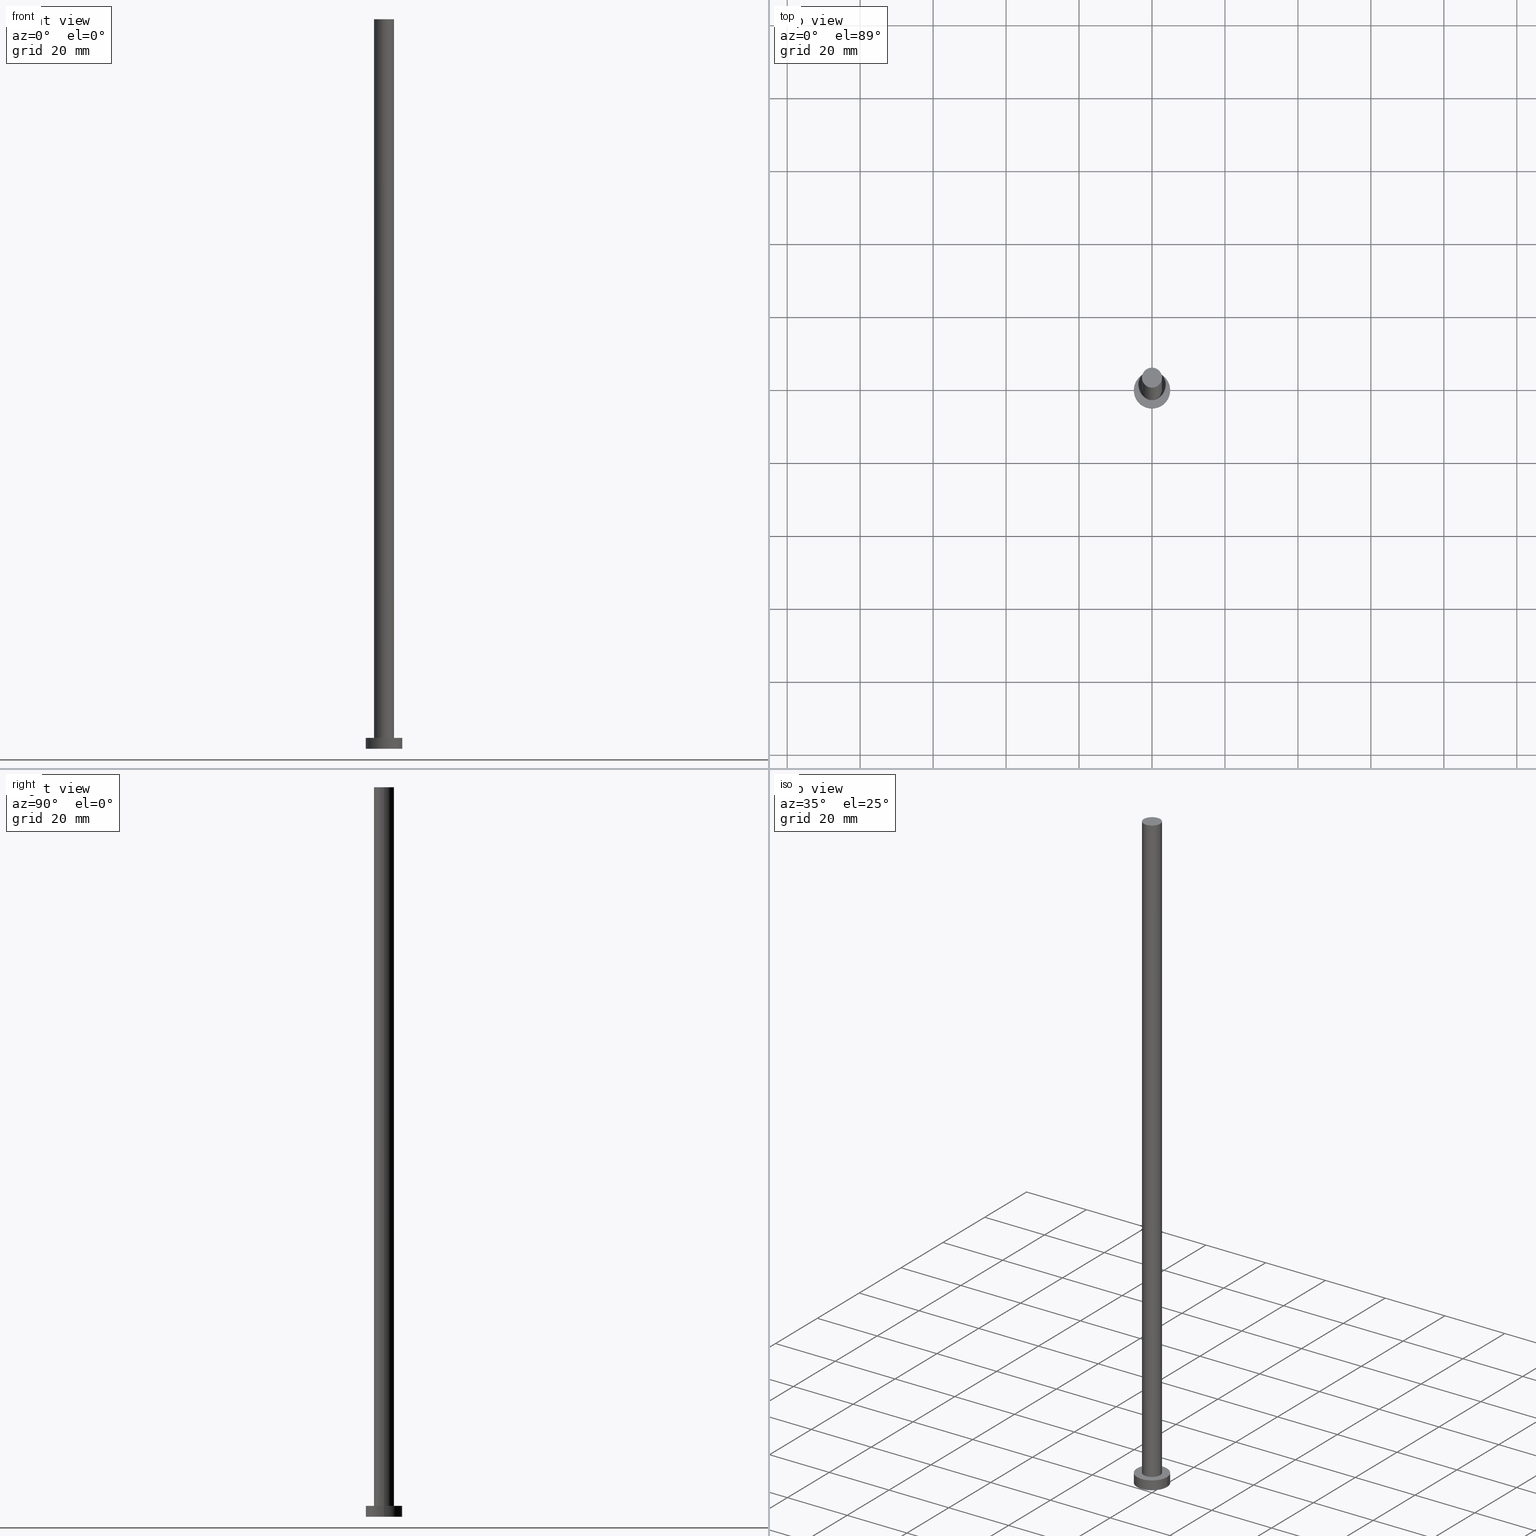
[diagram: canonical four-view strip — front | top / right | iso, engineering-drawing reading convention]
A machine part, canonical four-view strip (front | top / right | iso — engineering-drawing reading convention). The complete STEP part file that produces these views, byte-faithful:
ISO-10303-21;
HEADER;
FILE_DESCRIPTION (( 'STEP AP203' ),
    '1' );
FILE_NAME ('0ec5.STEP',
    '2023-02-13T12:39:51',
    ( '' ),
    ( '' ),
    'SwSTEP 2.0',
    'SolidWorks 2019',
    '' );
FILE_SCHEMA (( 'CONFIG_CONTROL_DESIGN' ));
ENDSEC;

DATA;
#1 = SECURITY_CLASSIFICATION_LEVEL ( 'unclassified' ) ;
#2 = ORIENTED_EDGE ( 'NONE', *, *, #18, .T. ) ;
#3 = PERSON_AND_ORGANIZATION ( #118, #54 ) ;
#4 = LOCAL_TIME ( 13, 39, 51.00000000000000000, #216 ) ;
#5 = ORIENTED_EDGE ( 'NONE', *, *, #229, .T. ) ;
#6 = AXIS2_PLACEMENT_3D ( 'NONE', #184, #46, #92 ) ;
#7 = APPLICATION_PROTOCOL_DEFINITION ( 'international standard', 'config_control_design', 1994, #185 ) ;
#8 = ORIENTED_EDGE ( 'NONE', *, *, #138, .T. ) ;
#9 = CARTESIAN_POINT ( 'NONE',  ( 0.000000000000000000, 0.000000000000000000, 3.000000000000000000 ) ) ;
#10 = AXIS2_PLACEMENT_3D ( 'NONE', #114, #251, #14 ) ;
#11 = CC_DESIGN_DATE_AND_TIME_ASSIGNMENT ( #143, #125, ( #183 ) ) ;
#12 = DIRECTION ( 'NONE',  ( -0.000000000000000000, -0.000000000000000000, -1.000000000000000000 ) ) ;
#13 = CARTESIAN_POINT ( 'NONE',  ( 0.000000000000000000, 0.000000000000000000, 200.0000000000000000 ) ) ;
#14 = DIRECTION ( 'NONE',  ( 1.000000000000000000, 0.000000000000000000, 0.000000000000000000 ) ) ;
#15 = APPROVAL ( #197, 'NEUR�EN�' ) ;
#16 = FACE_OUTER_BOUND ( 'NONE', #177, .T. ) ;
#17 = CIRCLE ( 'NONE', #121, 5.000000000000000000 ) ;
#18 = EDGE_CURVE ( 'NONE', #27, #128, #221, .T. ) ;
#19 = VERTEX_POINT ( 'NONE', #68 ) ;
#20 = ORIENTED_EDGE ( 'NONE', *, *, #93, .F. ) ;
#21 = COORDINATED_UNIVERSAL_TIME_OFFSET ( 1, 0, .AHEAD. ) ;
#22 = AXIS2_PLACEMENT_3D ( 'NONE', #209, #154, #224 ) ;
#23 = APPLICATION_PROTOCOL_DEFINITION ( 'international standard', 'config_control_design', 1994, #162 ) ;
#24 = APPROVAL_ROLE ( '' ) ;
#25 = CALENDAR_DATE ( 2023, 13, 2 ) ;
#26 = ORIENTED_EDGE ( 'NONE', *, *, #32, .T. ) ;
#27 = VERTEX_POINT ( 'NONE', #181 ) ;
#28 = CIRCLE ( 'NONE', #60, 5.000000000000000000 ) ;
#29 = CARTESIAN_POINT ( 'NONE',  ( 2.750000000000000000, 3.367778697655221012E-16, 3.000000000000000000 ) ) ;
#30 = DIRECTION ( 'NONE',  ( 1.000000000000000000, 0.000000000000000000, 0.000000000000000000 ) ) ;
#31 = CC_DESIGN_SECURITY_CLASSIFICATION ( #183, ( #227 ) ) ;
#32 = EDGE_CURVE ( 'NONE', #223, #107, #179, .T. ) ;
#33 =( GEOMETRIC_REPRESENTATION_CONTEXT ( 3 ) GLOBAL_UNCERTAINTY_ASSIGNED_CONTEXT ( ( #94 ) ) GLOBAL_UNIT_ASSIGNED_CONTEXT ( ( #204, #187, #52 ) ) REPRESENTATION_CONTEXT ( 'NONE', 'WORKASPACE' ) );
#34 = FACE_OUTER_BOUND ( 'NONE', #147, .T. ) ;
#35 = DIRECTION ( 'NONE',  ( -1.000000000000000000, 0.000000000000000000, 0.000000000000000000 ) ) ;
#36 = CARTESIAN_POINT ( 'NONE',  ( 0.000000000000000000, 0.000000000000000000, 3.000000000000000000 ) ) ;
#37 = AXIS2_PLACEMENT_3D ( 'NONE', #228, #76, #101 ) ;
#38 = ADVANCED_BREP_SHAPE_REPRESENTATION ( '0ec5', ( #250, #81 ), #33 ) ;
#39 = ORIENTED_EDGE ( 'NONE', *, *, #82, .F. ) ;
#40 = ORIENTED_EDGE ( 'NONE', *, *, #174, .T. ) ;
#41 = CC_DESIGN_DATE_AND_TIME_ASSIGNMENT ( #194, #237, ( #72 ) ) ;
#42 = PERSON_AND_ORGANIZATION ( #118, #54 ) ;
#43 = APPROVAL_ROLE ( '' ) ;
#44 = DIRECTION ( 'NONE',  ( -0.000000000000000000, -0.000000000000000000, -1.000000000000000000 ) ) ;
#45 = PERSON_AND_ORGANIZATION ( #118, #54 ) ;
#46 = DIRECTION ( 'NONE',  ( 0.000000000000000000, 0.000000000000000000, 1.000000000000000000 ) ) ;
#47 = APPROVAL_PERSON_ORGANIZATION ( #45, #15, #43 ) ;
#48 = MECHANICAL_CONTEXT ( 'NONE', #162, 'mechanical' ) ;
#49 = DIRECTION ( 'NONE',  ( 1.000000000000000000, 0.000000000000000000, 0.000000000000000000 ) ) ;
#50 = CARTESIAN_POINT ( 'NONE',  ( -2.750000000000000000, 0.000000000000000000, 200.0000000000000000 ) ) ;
#51 = CC_DESIGN_APPROVAL ( #225, ( #72 ) ) ;
#52 =( NAMED_UNIT ( * ) SI_UNIT ( $, .STERADIAN. ) SOLID_ANGLE_UNIT ( ) );
#53 = DIRECTION ( 'NONE',  ( -1.000000000000000000, 0.000000000000000000, 0.000000000000000000 ) ) ;
#54 = ORGANIZATION ( 'NEUR�EN�', 'NEUR�EN�', '' ) ;
#55 = DIRECTION ( 'NONE',  ( -1.000000000000000000, 0.000000000000000000, 0.000000000000000000 ) ) ;
#56 = DIRECTION ( 'NONE',  ( 0.000000000000000000, 0.000000000000000000, 1.000000000000000000 ) ) ;
#57 = ADVANCED_FACE ( 'NONE', ( #124 ), #126, .T. ) ;
#58 = EDGE_LOOP ( 'NONE', ( #2, #40 ) ) ;
#59 = DIRECTION ( 'NONE',  ( -0.000000000000000000, -0.000000000000000000, -1.000000000000000000 ) ) ;
#60 = AXIS2_PLACEMENT_3D ( 'NONE', #180, #105, #236 ) ;
#61 = VECTOR ( 'NONE', #195, 1000.000000000000000 ) ;
#62 = CALENDAR_DATE ( 2023, 13, 2 ) ;
#63 = EDGE_LOOP ( 'NONE', ( #199, #70 ) ) ;
#64 = COORDINATED_UNIVERSAL_TIME_OFFSET ( 1, 0, .AHEAD. ) ;
#65 = DIRECTION ( 'NONE',  ( -1.000000000000000000, 0.000000000000000000, 0.000000000000000000 ) ) ;
#66 = VECTOR ( 'NONE', #133, 1000.000000000000000 ) ;
#67 = PERSON_AND_ORGANIZATION_ROLE ( 'creator' ) ;
#68 = CARTESIAN_POINT ( 'NONE',  ( -2.750000000000000000, 0.000000000000000000, 3.000000000000000000 ) ) ;
#69 = DATE_AND_TIME ( #25, #249 ) ;
#70 = ORIENTED_EDGE ( 'NONE', *, *, #122, .F. ) ;
#71 = ORIENTED_EDGE ( 'NONE', *, *, #84, .T. ) ;
#72 = PRODUCT_DEFINITION ( 'NEZN�M�', '', #227, #167 ) ;
#73 = ORIENTED_EDGE ( 'NONE', *, *, #132, .F. ) ;
#74 = DIRECTION ( 'NONE',  ( 1.000000000000000000, 0.000000000000000000, -0.000000000000000000 ) ) ;
#75 = CC_DESIGN_APPROVAL ( #142, ( #227 ) ) ;
#76 = DIRECTION ( 'NONE',  ( 0.000000000000000000, 0.000000000000000000, 1.000000000000000000 ) ) ;
#77 = AXIS2_PLACEMENT_3D ( 'NONE', #88, #234, #30 ) ;
#78 = CARTESIAN_POINT ( 'NONE',  ( 0.000000000000000000, 0.000000000000000000, 3.000000000000000000 ) ) ;
#79 = PLANE ( 'NONE',  #22 ) ;
#80 = PRODUCT_DEFINITION_SHAPE ( 'NONE', 'NONE',  #72 ) ;
#81 = AXIS2_PLACEMENT_3D ( 'NONE', #193, #103, #231 ) ;
#82 = EDGE_CURVE ( 'NONE', #128, #136, #90, .T. ) ;
#83 = CYLINDRICAL_SURFACE ( 'NONE', #134, 5.000000000000000000 ) ;
#84 = EDGE_CURVE ( 'NONE', #240, #173, #28, .T. ) ;
#85 = ORIENTED_EDGE ( 'NONE', *, *, #32, .F. ) ;
#86 = PERSON_AND_ORGANIZATION ( #118, #54 ) ;
#87 = CALENDAR_DATE ( 2023, 13, 2 ) ;
#88 = CARTESIAN_POINT ( 'NONE',  ( 0.000000000000000000, 0.000000000000000000, 0.000000000000000000 ) ) ;
#89 = DATE_AND_TIME ( #87, #150 ) ;
#90 = LINE ( 'NONE', #238, #245 ) ;
#91 = SHAPE_DEFINITION_REPRESENTATION ( #80, #38 ) ;
#92 = DIRECTION ( 'NONE',  ( 1.000000000000000000, 0.000000000000000000, 0.000000000000000000 ) ) ;
#93 = EDGE_CURVE ( 'NONE', #107, #223, #98, .T. ) ;
#94 = UNCERTAINTY_MEASURE_WITH_UNIT (LENGTH_MEASURE( 1.000000000000000082E-05 ), #204, 'distance_accuracy_value', 'NONE');
#95 = ORIENTED_EDGE ( 'NONE', *, *, #82, .T. ) ;
#96 = DIRECTION ( 'NONE',  ( 0.000000000000000000, 0.000000000000000000, 1.000000000000000000 ) ) ;
#97 = CC_DESIGN_PERSON_AND_ORGANIZATION_ASSIGNMENT ( #159, #161, ( #246 ) ) ;
#98 = CIRCLE ( 'NONE', #158, 5.000000000000000000 ) ;
#99 = VECTOR ( 'NONE', #59, 1000.000000000000000 ) ;
#100 = CARTESIAN_POINT ( 'NONE',  ( 0.000000000000000000, 0.000000000000000000, 0.000000000000000000 ) ) ;
#101 = DIRECTION ( 'NONE',  ( 1.000000000000000000, 0.000000000000000000, 0.000000000000000000 ) ) ;
#102 = ORIENTED_EDGE ( 'NONE', *, *, #93, .T. ) ;
#103 = DIRECTION ( 'NONE',  ( 0.000000000000000000, 0.000000000000000000, 1.000000000000000000 ) ) ;
#104 = APPROVAL_DATE_TIME ( #89, #225 ) ;
#105 = DIRECTION ( 'NONE',  ( 0.000000000000000000, 0.000000000000000000, 1.000000000000000000 ) ) ;
#106 = CALENDAR_DATE ( 2023, 13, 2 ) ;
#107 = VERTEX_POINT ( 'NONE', #215 ) ;
#108 = CC_DESIGN_PERSON_AND_ORGANIZATION_ASSIGNMENT ( #86, #67, ( #227 ) ) ;
#109 = DIRECTION ( 'NONE',  ( -0.000000000000000000, -0.000000000000000000, -1.000000000000000000 ) ) ;
#110 = LOCAL_TIME ( 13, 39, 51.00000000000000000, #64 ) ;
#111 = EDGE_LOOP ( 'NONE', ( #39, #135, #8, #5 ) ) ;
#112 = FACE_OUTER_BOUND ( 'NONE', #58, .T. ) ;
#113 = FACE_OUTER_BOUND ( 'NONE', #153, .T. ) ;
#114 = CARTESIAN_POINT ( 'NONE',  ( 0.000000000000000000, 0.000000000000000000, 3.000000000000000000 ) ) ;
#115 = CIRCLE ( 'NONE', #190, 2.750000000000000000 ) ;
#116 = AXIS2_PLACEMENT_3D ( 'NONE', #100, #56, #152 ) ;
#117 = PLANE ( 'NONE',  #226 ) ;
#118 = PERSON ( 'NEUR�EN�', 'NEUR�EN�', 'NEUR�EN�', ('NEUR�EN�'), ('NEUR�EN�'), ('NEUR�EN�') ) ;
#119 = CALENDAR_DATE ( 2023, 13, 2 ) ;
#120 = APPROVAL_ROLE ( '' ) ;
#121 = AXIS2_PLACEMENT_3D ( 'NONE', #151, #169, #222 ) ;
#122 = EDGE_CURVE ( 'NONE', #136, #19, #115, .T. ) ;
#123 = COORDINATED_UNIVERSAL_TIME_OFFSET ( 1, 0, .AHEAD. ) ;
#124 = FACE_OUTER_BOUND ( 'NONE', #155, .T. ) ;
#125 = DATE_TIME_ROLE ( 'classification_date' ) ;
#126 = CYLINDRICAL_SURFACE ( 'NONE', #137, 5.000000000000000000 ) ;
#127 = DIRECTION ( 'NONE',  ( 0.000000000000000000, 0.000000000000000000, 1.000000000000000000 ) ) ;
#128 = VERTEX_POINT ( 'NONE', #242 ) ;
#129 = ORIENTED_EDGE ( 'NONE', *, *, #122, .T. ) ;
#130 = CARTESIAN_POINT ( 'NONE',  ( -5.000000000000000000, 0.000000000000000000, 0.000000000000000000 ) ) ;
#131 = CC_DESIGN_PERSON_AND_ORGANIZATION_ASSIGNMENT ( #42, #144, ( #227 ) ) ;
#132 = EDGE_CURVE ( 'NONE', #173, #107, #200, .T. ) ;
#133 = DIRECTION ( 'NONE',  ( -0.000000000000000000, -0.000000000000000000, -1.000000000000000000 ) ) ;
#134 = AXIS2_PLACEMENT_3D ( 'NONE', #36, #206, #35 ) ;
#135 = ORIENTED_EDGE ( 'NONE', *, *, #18, .F. ) ;
#136 = VERTEX_POINT ( 'NONE', #29 ) ;
#137 = AXIS2_PLACEMENT_3D ( 'NONE', #145, #109, #65 ) ;
#138 = EDGE_CURVE ( 'NONE', #27, #19, #219, .T. ) ;
#139 = CARTESIAN_POINT ( 'NONE',  ( -5.000000000000000000, 0.000000000000000000, 3.000000000000000000 ) ) ;
#140 = APPROVAL_STATUS ( 'not_yet_approved' ) ;
#141 = APPROVAL_STATUS ( 'not_yet_approved' ) ;
#142 = APPROVAL ( #141, 'NEUR�EN�' ) ;
#143 = DATE_AND_TIME ( #106, #110 ) ;
#144 = PERSON_AND_ORGANIZATION_ROLE ( 'design_supplier' ) ;
#145 = CARTESIAN_POINT ( 'NONE',  ( 0.000000000000000000, 0.000000000000000000, 3.000000000000000000 ) ) ;
#146 = CIRCLE ( 'NONE', #37, 2.750000000000000000 ) ;
#147 = EDGE_LOOP ( 'NONE', ( #85, #20 ) ) ;
#148 = DIRECTION ( 'NONE',  ( 0.000000000000000000, 0.000000000000000000, 1.000000000000000000 ) ) ;
#149 = CYLINDRICAL_SURFACE ( 'NONE', #241, 2.750000000000000000 ) ;
#150 = LOCAL_TIME ( 13, 39, 51.00000000000000000, #235 ) ;
#151 = CARTESIAN_POINT ( 'NONE',  ( 0.000000000000000000, 0.000000000000000000, 3.000000000000000000 ) ) ;
#152 = DIRECTION ( 'NONE',  ( 1.000000000000000000, 0.000000000000000000, -0.000000000000000000 ) ) ;
#153 = EDGE_LOOP ( 'NONE', ( #71, #213 ) ) ;
#154 = DIRECTION ( 'NONE',  ( 0.000000000000000000, 0.000000000000000000, 1.000000000000000000 ) ) ;
#155 = EDGE_LOOP ( 'NONE', ( #73, #230, #210, #26 ) ) ;
#156 = CC_DESIGN_PERSON_AND_ORGANIZATION_ASSIGNMENT ( #176, #164, ( #72 ) ) ;
#157 = FACE_OUTER_BOUND ( 'NONE', #111, .T. ) ;
#158 = AXIS2_PLACEMENT_3D ( 'NONE', #182, #148, #49 ) ;
#159 = PERSON_AND_ORGANIZATION ( #118, #54 ) ;
#160 = EDGE_LOOP ( 'NONE', ( #201, #163, #102, #202 ) ) ;
#161 = PERSON_AND_ORGANIZATION_ROLE ( 'design_owner' ) ;
#162 = APPLICATION_CONTEXT ( 'configuration controlled 3d designs of mechanical parts and assemblies' ) ;
#163 = ORIENTED_EDGE ( 'NONE', *, *, #132, .T. ) ;
#164 = PERSON_AND_ORGANIZATION_ROLE ( 'creator' ) ;
#165 = DIRECTION ( 'NONE',  ( 1.000000000000000000, 0.000000000000000000, 0.000000000000000000 ) ) ;
#166 = ADVANCED_FACE ( 'NONE', ( #157 ), #189, .T. ) ;
#167 = DESIGN_CONTEXT ( 'detailed design', #185, 'design' ) ;
#168 = DIRECTION ( 'NONE',  ( -0.000000000000000000, -0.000000000000000000, -1.000000000000000000 ) ) ;
#169 = DIRECTION ( 'NONE',  ( 0.000000000000000000, 0.000000000000000000, 1.000000000000000000 ) ) ;
#170 = ADVANCED_FACE ( 'NONE', ( #34 ), #203, .F. ) ;
#171 = CARTESIAN_POINT ( 'NONE',  ( 0.000000000000000000, 0.000000000000000000, 200.0000000000000000 ) ) ;
#172 = APPROVAL_DATE_TIME ( #69, #15 ) ;
#173 = VERTEX_POINT ( 'NONE', #186 ) ;
#174 = EDGE_CURVE ( 'NONE', #128, #27, #146, .T. ) ;
#175 = CIRCLE ( 'NONE', #10, 2.750000000000000000 ) ;
#176 = PERSON_AND_ORGANIZATION ( #118, #54 ) ;
#177 = EDGE_LOOP ( 'NONE', ( #253, #95, #129, #217 ) ) ;
#178 = CARTESIAN_POINT ( 'NONE',  ( 5.000000000000000000, 6.123233995736766282E-16, 3.000000000000000000 ) ) ;
#179 = CIRCLE ( 'NONE', #77, 5.000000000000000000 ) ;
#180 = CARTESIAN_POINT ( 'NONE',  ( 0.000000000000000000, 0.000000000000000000, 3.000000000000000000 ) ) ;
#181 = CARTESIAN_POINT ( 'NONE',  ( -2.750000000000000000, 0.000000000000000000, 200.0000000000000000 ) ) ;
#182 = CARTESIAN_POINT ( 'NONE',  ( 0.000000000000000000, 0.000000000000000000, 0.000000000000000000 ) ) ;
#183 = SECURITY_CLASSIFICATION ( '', '', #1 ) ;
#184 = CARTESIAN_POINT ( 'NONE',  ( 0.000000000000000000, 0.000000000000000000, 200.0000000000000000 ) ) ;
#185 = APPLICATION_CONTEXT ( 'configuration controlled 3d designs of mechanical parts and assemblies' ) ;
#186 = CARTESIAN_POINT ( 'NONE',  ( 5.000000000000000000, 6.123233995736766282E-16, 3.000000000000000000 ) ) ;
#187 =( NAMED_UNIT ( * ) PLANE_ANGLE_UNIT ( ) SI_UNIT ( $, .RADIAN. ) );
#188 = CLOSED_SHELL ( 'NONE', ( #207, #218, #57, #196, #170, #166, #244 ) ) ;
#189 = CYLINDRICAL_SURFACE ( 'NONE', #254, 2.750000000000000000 ) ;
#190 = AXIS2_PLACEMENT_3D ( 'NONE', #9, #127, #165 ) ;
#191 = FACE_OUTER_BOUND ( 'NONE', #160, .T. ) ;
#192 = LOCAL_TIME ( 13, 39, 51.00000000000000000, #123 ) ;
#193 = CARTESIAN_POINT ( 'NONE',  ( 0.000000000000000000, 0.000000000000000000, 0.000000000000000000 ) ) ;
#194 = DATE_AND_TIME ( #119, #192 ) ;
#195 = DIRECTION ( 'NONE',  ( -0.000000000000000000, -0.000000000000000000, -1.000000000000000000 ) ) ;
#196 = ADVANCED_FACE ( 'NONE', ( #243, #113 ), #117, .T. ) ;
#197 = APPROVAL_STATUS ( 'not_yet_approved' ) ;
#198 = APPROVAL_PERSON_ORGANIZATION ( #3, #225, #24 ) ;
#199 = ORIENTED_EDGE ( 'NONE', *, *, #229, .F. ) ;
#200 = LINE ( 'NONE', #178, #61 ) ;
#201 = ORIENTED_EDGE ( 'NONE', *, *, #205, .F. ) ;
#202 = ORIENTED_EDGE ( 'NONE', *, *, #239, .F. ) ;
#203 = PLANE ( 'NONE',  #116 ) ;
#204 =( LENGTH_UNIT ( ) NAMED_UNIT ( * ) SI_UNIT ( .MILLI., .METRE. ) );
#205 = EDGE_CURVE ( 'NONE', #173, #240, #17, .T. ) ;
#206 = DIRECTION ( 'NONE',  ( -0.000000000000000000, -0.000000000000000000, -1.000000000000000000 ) ) ;
#207 = ADVANCED_FACE ( 'NONE', ( #16 ), #149, .T. ) ;
#208 = APPROVAL_PERSON_ORGANIZATION ( #212, #142, #120 ) ;
#209 = CARTESIAN_POINT ( 'NONE',  ( 0.000000000000000000, 0.000000000000000000, 200.0000000000000000 ) ) ;
#210 = ORIENTED_EDGE ( 'NONE', *, *, #239, .T. ) ;
#211 = APPROVAL_DATE_TIME ( #255, #142 ) ;
#212 = PERSON_AND_ORGANIZATION ( #118, #54 ) ;
#213 = ORIENTED_EDGE ( 'NONE', *, *, #205, .T. ) ;
#214 = PERSON_AND_ORGANIZATION_ROLE ( 'classification_officer' ) ;
#215 = CARTESIAN_POINT ( 'NONE',  ( 5.000000000000000000, 6.123233995736766282E-16, 0.000000000000000000 ) ) ;
#216 = COORDINATED_UNIVERSAL_TIME_OFFSET ( 1, 0, .AHEAD. ) ;
#217 = ORIENTED_EDGE ( 'NONE', *, *, #138, .F. ) ;
#218 = ADVANCED_FACE ( 'NONE', ( #191 ), #83, .T. ) ;
#219 = LINE ( 'NONE', #50, #99 ) ;
#220 = CARTESIAN_POINT ( 'NONE',  ( -5.000000000000000000, 0.000000000000000000, 3.000000000000000000 ) ) ;
#221 = CIRCLE ( 'NONE', #6, 2.750000000000000000 ) ;
#222 = DIRECTION ( 'NONE',  ( 1.000000000000000000, 0.000000000000000000, 0.000000000000000000 ) ) ;
#223 = VERTEX_POINT ( 'NONE', #130 ) ;
#224 = DIRECTION ( 'NONE',  ( 1.000000000000000000, 0.000000000000000000, -0.000000000000000000 ) ) ;
#225 = APPROVAL ( #140, 'NEUR�EN�' ) ;
#226 = AXIS2_PLACEMENT_3D ( 'NONE', #78, #96, #74 ) ;
#227 = PRODUCT_DEFINITION_FORMATION_WITH_SPECIFIED_SOURCE ( 'LIBOVOLN�', '', #246, .NOT_KNOWN. ) ;
#228 = CARTESIAN_POINT ( 'NONE',  ( 0.000000000000000000, 0.000000000000000000, 200.0000000000000000 ) ) ;
#229 = EDGE_CURVE ( 'NONE', #19, #136, #175, .T. ) ;
#230 = ORIENTED_EDGE ( 'NONE', *, *, #84, .F. ) ;
#231 = DIRECTION ( 'NONE',  ( 1.000000000000000000, 0.000000000000000000, 0.000000000000000000 ) ) ;
#232 = PERSON_AND_ORGANIZATION ( #118, #54 ) ;
#233 = PRODUCT_RELATED_PRODUCT_CATEGORY ( 'detail', '', ( #246 ) ) ;
#234 = DIRECTION ( 'NONE',  ( 0.000000000000000000, 0.000000000000000000, 1.000000000000000000 ) ) ;
#235 = COORDINATED_UNIVERSAL_TIME_OFFSET ( 1, 0, .AHEAD. ) ;
#236 = DIRECTION ( 'NONE',  ( 1.000000000000000000, 0.000000000000000000, 0.000000000000000000 ) ) ;
#237 = DATE_TIME_ROLE ( 'creation_date' ) ;
#238 = CARTESIAN_POINT ( 'NONE',  ( 2.750000000000000000, 3.367778697655221012E-16, 200.0000000000000000 ) ) ;
#239 = EDGE_CURVE ( 'NONE', #240, #223, #247, .T. ) ;
#240 = VERTEX_POINT ( 'NONE', #220 ) ;
#241 = AXIS2_PLACEMENT_3D ( 'NONE', #171, #168, #55 ) ;
#242 = CARTESIAN_POINT ( 'NONE',  ( 2.750000000000000000, 3.367778697655221012E-16, 200.0000000000000000 ) ) ;
#243 = FACE_BOUND ( 'NONE', #63, .T. ) ;
#244 = ADVANCED_FACE ( 'NONE', ( #112 ), #79, .T. ) ;
#245 = VECTOR ( 'NONE', #44, 1000.000000000000000 ) ;
#246 = PRODUCT ( '0ec5', '0ec5', '', ( #48 ) ) ;
#247 = LINE ( 'NONE', #139, #66 ) ;
#248 = CC_DESIGN_PERSON_AND_ORGANIZATION_ASSIGNMENT ( #232, #214, ( #183 ) ) ;
#249 = LOCAL_TIME ( 13, 39, 51.00000000000000000, #21 ) ;
#250 = MANIFOLD_SOLID_BREP ( 'P�idat vysunut�m3', #188 ) ;
#251 = DIRECTION ( 'NONE',  ( 0.000000000000000000, 0.000000000000000000, 1.000000000000000000 ) ) ;
#252 = CC_DESIGN_APPROVAL ( #15, ( #183 ) ) ;
#253 = ORIENTED_EDGE ( 'NONE', *, *, #174, .F. ) ;
#254 = AXIS2_PLACEMENT_3D ( 'NONE', #13, #12, #53 ) ;
#255 = DATE_AND_TIME ( #62, #4 ) ;
ENDSEC;
END-ISO-10303-21;
